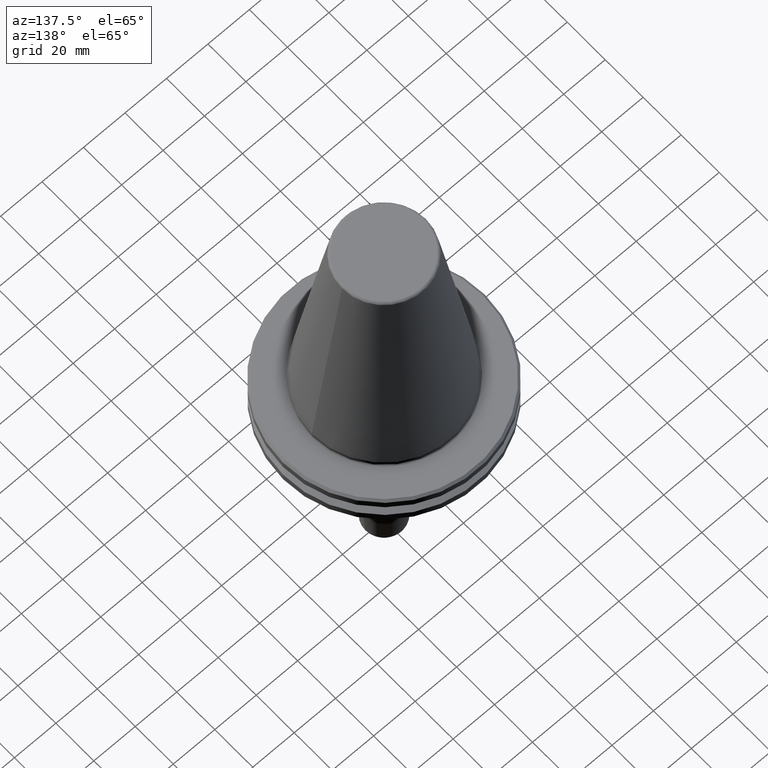
[diagram: clean part render]
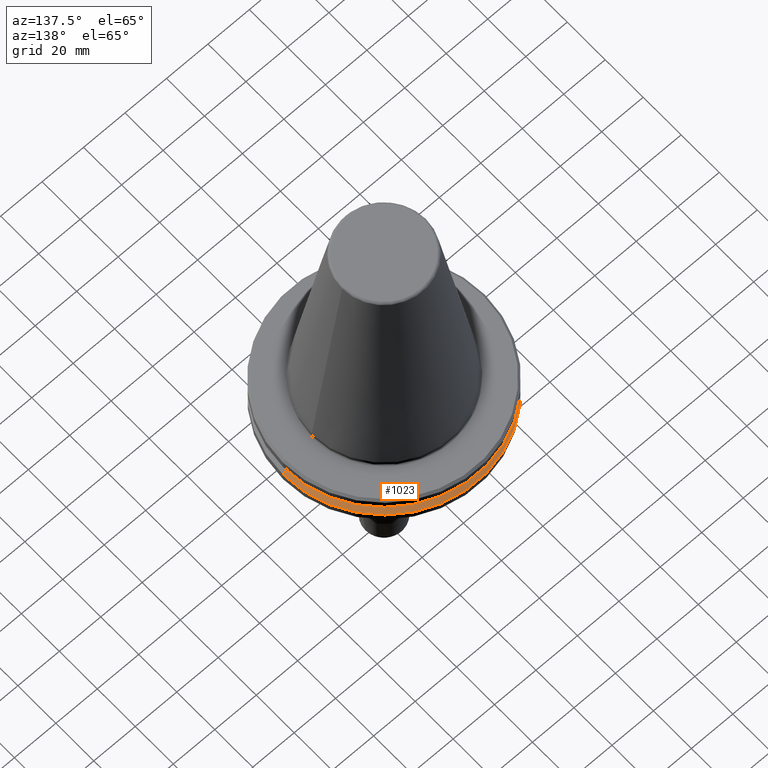
[diagram: same view with one face highlighted and labeled with its STEP entity id]
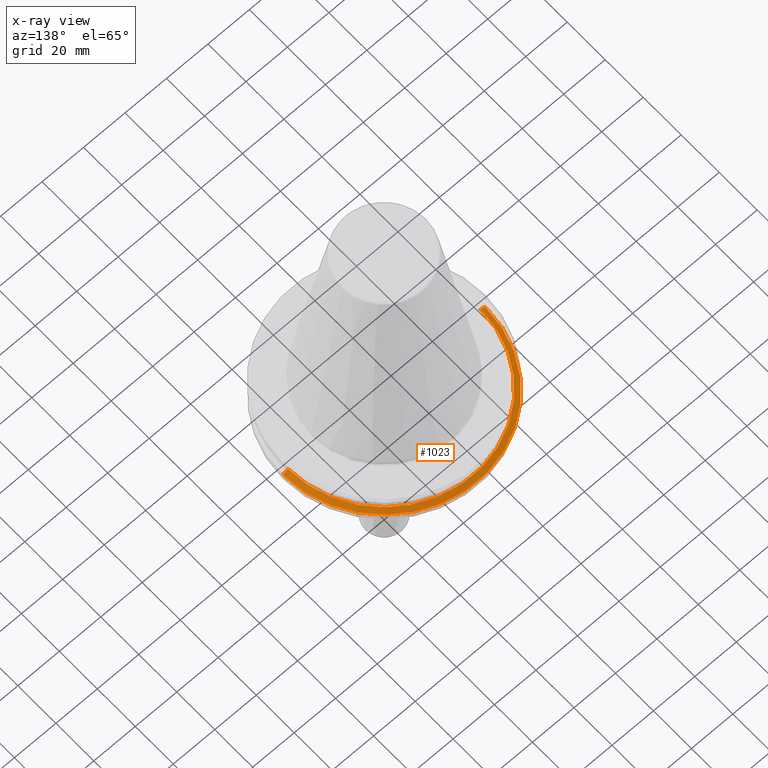
[diagram: x-ray of the same camera — body ghosted, the highlighted face saturated]
A machine part, auxiliary view. The second image highlights one B-rep face of the part: STEP entity #1023.
The next image is the same camera in x-ray: the body ghosted, the highlighted face saturated — about 0% of this face is hidden behind the body in this view.
In plain terms, the highlighted conical surface has half-angle 60 deg.
Its self-contained STEP definition (entity closure, byte-faithful):
#13 = CONICAL_SURFACE ( 'NONE', #701, 48.75000000000001400, 1.047197551196599400 ) ;
#56 = DIRECTION ( 'NONE',  ( -0.8660254037844393700, 0.0000000000000000000, -0.4999999999999985000 ) ) ;
#134 = CARTESIAN_POINT ( 'NONE',  ( -48.75000000000001400, 0.0000000000000000000, -14.34759526419166600 ) ) ;
#138 = DIRECTION ( 'NONE',  ( 1.000000000000000000, 0.0000000000000000000, 0.0000000000000000000 ) ) ;
#142 = DIRECTION ( 'NONE',  ( -0.0000000000000000000, -0.0000000000000000000, 1.000000000000000000 ) ) ;
#143 = CARTESIAN_POINT ( 'NONE',  ( 0.0000000000000000000, 0.0000000000000000000, -12.97499999999995900 ) ) ;
#147 = DIRECTION ( 'NONE',  ( 0.8660254037844393700, 1.060575238724907800E-016, -0.4999999999999985000 ) ) ;
#166 = DIRECTION ( 'NONE',  ( -1.000000000000000000, 0.0000000000000000000, 0.0000000000000000000 ) ) ;
#172 = DIRECTION ( 'NONE',  ( -0.0000000000000000000, -0.0000000000000000000, 1.000000000000000000 ) ) ;
#173 = LINE ( 'NONE', #134, #182 ) ;
#174 = CARTESIAN_POINT ( 'NONE',  ( 0.0000000000000000000, 0.0000000000000000000, -14.34759526419166200 ) ) ;
#175 = VERTEX_POINT ( 'NONE', #928 ) ;
#182 = VECTOR ( 'NONE', #56, 1000.000000000000100 ) ;
#183 = CARTESIAN_POINT ( 'NONE',  ( 48.75000000000001400, 5.970153145843348700E-015, -14.34759526419166600 ) ) ;
#194 = VECTOR ( 'NONE', #147, 1000.000000000000100 ) ;
#222 = LINE ( 'NONE', #183, #194 ) ;
#307 = FACE_OUTER_BOUND ( 'NONE', #1017, .T. ) ;
#369 = CIRCLE ( 'NONE', #474, 48.75000000000000000 ) ;
#412 = CARTESIAN_POINT ( 'NONE',  ( 48.75000000000000700, 5.970153145843347900E-015, -14.34759526419166200 ) ) ;
#414 = CARTESIAN_POINT ( 'NONE',  ( 46.37259526419124000, 5.824579090844049500E-015, -12.97499999999995900 ) ) ;
#474 = AXIS2_PLACEMENT_3D ( 'NONE', #174, #172, #166 ) ;
#497 = DIRECTION ( 'NONE',  ( 0.0000000000000000000, 0.0000000000000000000, -1.000000000000000000 ) ) ;
#509 = CARTESIAN_POINT ( 'NONE',  ( 0.0000000000000000000, 0.0000000000000000000, -14.34759526419166600 ) ) ;
#545 = CIRCLE ( 'NONE', #1056, 46.37259526419124000 ) ;
#571 = VERTEX_POINT ( 'NONE', #412 ) ;
#578 = DIRECTION ( 'NONE',  ( -1.000000000000000000, 0.0000000000000000000, 0.0000000000000000000 ) ) ;
#596 = VERTEX_POINT ( 'NONE', #414 ) ;
#701 = AXIS2_PLACEMENT_3D ( 'NONE', #509, #497, #578 ) ;
#702 = EDGE_CURVE ( 'NONE', #571, #175, #369, .T. ) ;
#721 = ORIENTED_EDGE ( 'NONE', *, *, #735, .F. ) ;
#735 = EDGE_CURVE ( 'NONE', #596, #1122, #545, .T. ) ;
#750 = EDGE_CURVE ( 'NONE', #596, #571, #222, .T. ) ;
#759 = EDGE_CURVE ( 'NONE', #1122, #175, #173, .T. ) ;
#928 = CARTESIAN_POINT ( 'NONE',  ( -48.75000000000000700, 0.0000000000000000000, -14.34759526419166200 ) ) ;
#932 = CARTESIAN_POINT ( 'NONE',  ( -46.37259526419124000, 0.0000000000000000000, -12.97499999999995900 ) ) ;
#1017 = EDGE_LOOP ( 'NONE', ( #721, #1046, #1055, #1069 ) ) ;
#1023 = ADVANCED_FACE ( 'NONE', ( #307 ), #13, .T. ) ;
#1046 = ORIENTED_EDGE ( 'NONE', *, *, #750, .T. ) ;
#1055 = ORIENTED_EDGE ( 'NONE', *, *, #702, .T. ) ;
#1056 = AXIS2_PLACEMENT_3D ( 'NONE', #143, #142, #138 ) ;
#1069 = ORIENTED_EDGE ( 'NONE', *, *, #759, .F. ) ;
#1122 = VERTEX_POINT ( 'NONE', #932 ) ;